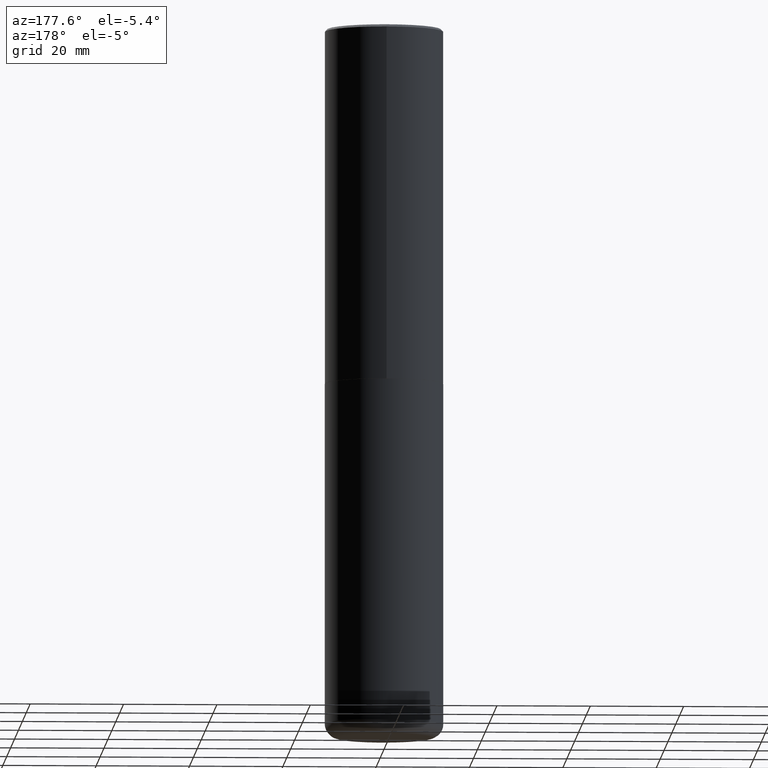
[diagram: clean part render]
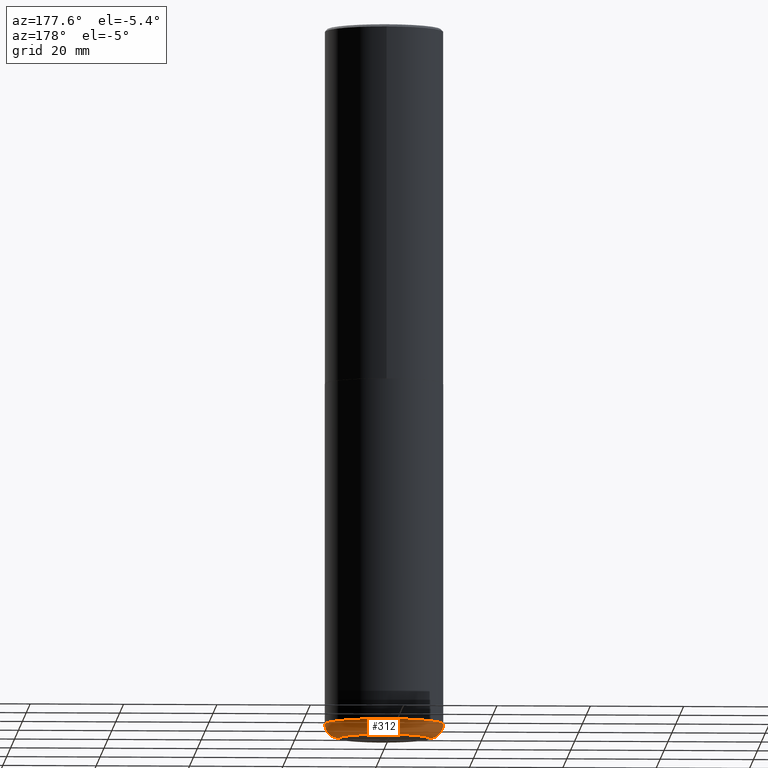
[diagram: same view with one face highlighted and labeled with its STEP entity id]
A machine part, auxiliary view. The second image highlights one B-rep face of the part: STEP entity #312.
In plain terms, the highlighted toroidal blend (fillet) surface has major radius 9.652 mm and minor (blend) radius 3.048 mm.
Its self-contained STEP definition (entity closure, byte-faithful):
#8 = CIRCLE ( 'NONE', #194, 0.1199999999999999539 ) ;
#14 = DIRECTION ( 'NONE',  ( -2.445468806185136597E-29, 3.491481338843145583E-15, 1.000000000000000000 ) ) ;
#34 = FACE_OUTER_BOUND ( 'NONE', #390, .T. ) ;
#46 = AXIS2_PLACEMENT_3D ( 'NONE', #132, #199, #193 ) ;
#49 = ORIENTED_EDGE ( 'NONE', *, *, #383, .F. ) ;
#95 = CARTESIAN_POINT ( 'NONE',  ( -0.3799999999999999489, -1.761301111538384868E-14, -6.000000000000000888 ) ) ;
#102 = DIRECTION ( 'NONE',  ( -1.000000000000000000, 7.105427357600993970E-15, 0.000000000000000000 ) ) ;
#132 = CARTESIAN_POINT ( 'NONE',  ( 1.437935658036860328E-28, -2.052991027239769923E-14, -5.880000000000000782 ) ) ;
#134 = ORIENTED_EDGE ( 'NONE', *, *, #165, .T. ) ;
#140 = CARTESIAN_POINT ( 'NONE',  ( 1.437935658036860328E-28, -2.052991027239769923E-14, -5.880000000000000782 ) ) ;
#143 = VERTEX_POINT ( 'NONE', #95 ) ;
#153 = DIRECTION ( 'NONE',  ( -2.445468806185136597E-29, 3.491481338843145583E-15, 1.000000000000000000 ) ) ;
#159 = AXIS2_PLACEMENT_3D ( 'NONE', #241, #202, #335 ) ;
#164 = ORIENTED_EDGE ( 'NONE', *, *, #248, .T. ) ;
#165 = EDGE_CURVE ( 'NONE', #294, #143, #274, .T. ) ;
#166 = DIRECTION ( 'NONE',  ( 7.105427357601001859E-15, 1.000000000000000000, -3.491481338843145583E-15 ) ) ;
#193 = DIRECTION ( 'NONE',  ( 1.000000000000000000, -6.982962677686264344E-15, 4.883557194083112340E-29 ) ) ;
#194 = AXIS2_PLACEMENT_3D ( 'NONE', #298, #166, #102 ) ;
#199 = DIRECTION ( 'NONE',  ( -2.445468806185136597E-29, 3.491481338843145583E-15, 1.000000000000000000 ) ) ;
#200 = CIRCLE ( 'NONE', #159, 0.1199999999999999539 ) ;
#202 = DIRECTION ( 'NONE',  ( -6.982962677686266711E-15, -1.000000000000000000, 3.491481338843145583E-15 ) ) ;
#209 = ORIENTED_EDGE ( 'NONE', *, *, #356, .F. ) ;
#214 = CIRCLE ( 'NONE', #286, 0.5000000000000001110 ) ;
#216 = DIRECTION ( 'NONE',  ( 1.000000000000000000, -6.982962677686261977E-15, 0.000000000000000000 ) ) ;
#226 = CARTESIAN_POINT ( 'NONE',  ( -0.5000000000000000000, -1.697719659359719830E-14, -5.880000000000000782 ) ) ;
#241 = CARTESIAN_POINT ( 'NONE',  ( 0.3799999999999999489, -2.318343608991847616E-14, -5.880000000000000782 ) ) ;
#248 = EDGE_CURVE ( 'NONE', #143, #308, #8, .T. ) ;
#252 = TOROIDAL_SURFACE ( 'NONE', #46, 0.3799999999999999489, 0.1199999999999999539 ) ;
#270 = CARTESIAN_POINT ( 'NONE',  ( 0.3799999999999999489, -2.360241385057965279E-14, -6.000000000000000888 ) ) ;
#273 = VERTEX_POINT ( 'NONE', #382 ) ;
#274 = CIRCLE ( 'NONE', #365, 0.3799999999999999489 ) ;
#286 = AXIS2_PLACEMENT_3D ( 'NONE', #140, #14, #338 ) ;
#294 = VERTEX_POINT ( 'NONE', #270 ) ;
#298 = CARTESIAN_POINT ( 'NONE',  ( -0.3799999999999999489, -1.782984787650931928E-14, -5.880000000000000782 ) ) ;
#308 = VERTEX_POINT ( 'NONE', #226 ) ;
#312 = ADVANCED_FACE ( 'NONE', ( #34 ), #252, .T. ) ;
#335 = DIRECTION ( 'NONE',  ( 1.000000000000000000, -6.982962677686270655E-15, 0.000000000000000000 ) ) ;
#338 = DIRECTION ( 'NONE',  ( 1.000000000000000000, -6.982962677686269077E-15, 0.000000000000000000 ) ) ;
#356 = EDGE_CURVE ( 'NONE', #294, #273, #200, .T. ) ;
#365 = AXIS2_PLACEMENT_3D ( 'NONE', #411, #153, #216 ) ;
#382 = CARTESIAN_POINT ( 'NONE',  ( 0.5000000000000000000, -2.402139161124082943E-14, -5.880000000000000782 ) ) ;
#383 = EDGE_CURVE ( 'NONE', #273, #308, #214, .T. ) ;
#390 = EDGE_LOOP ( 'NONE', ( #134, #164, #49, #209 ) ) ;
#411 = CARTESIAN_POINT ( 'NONE',  ( 1.467281283711081958E-28, -2.094888803305887271E-14, -6.000000000000000888 ) ) ;